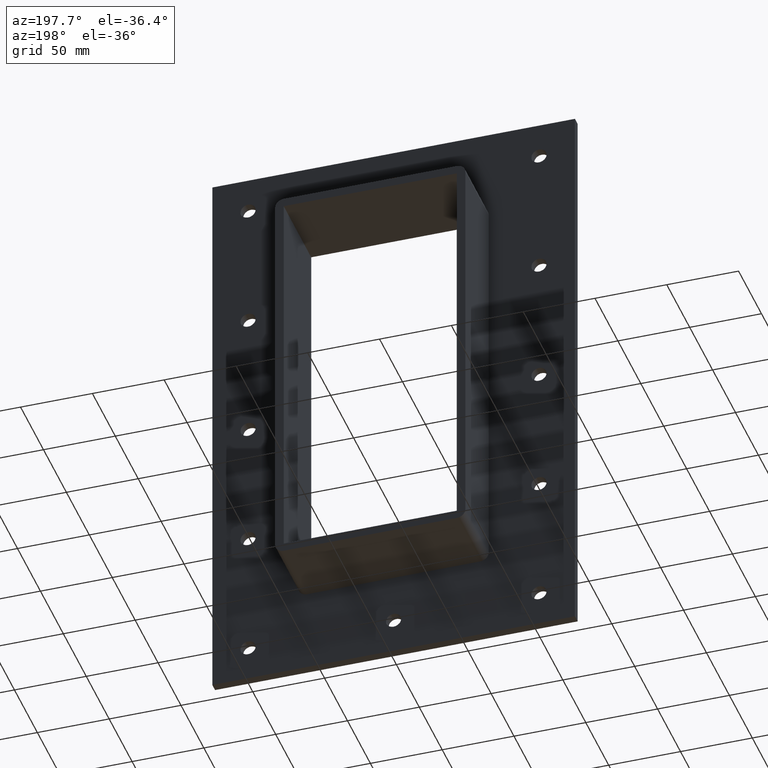
[diagram: clean part render]
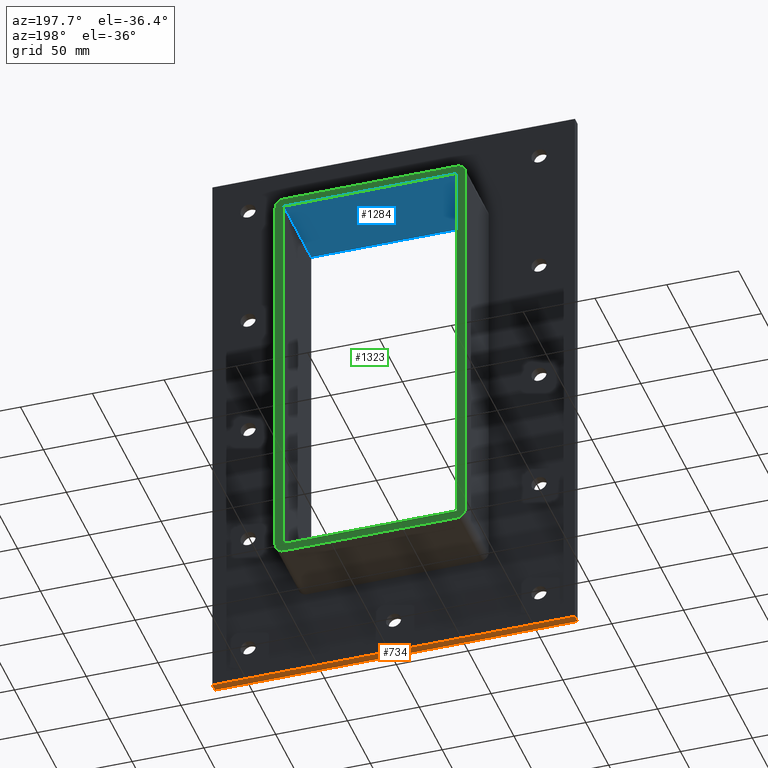
[diagram: same view with three faces highlighted in distinct colors, each labeled with its STEP entity id]
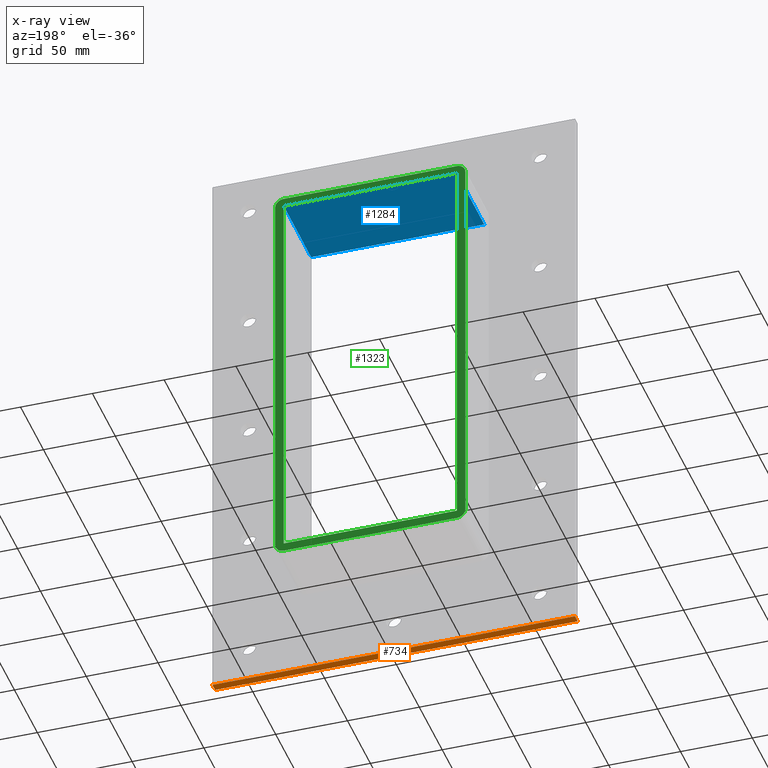
[diagram: x-ray of the same camera — body ghosted, the three highlighted faces saturated]
A machine part, auxiliary view with three faces highlighted in distinct colors.
The next image is the same camera in x-ray (body ghosted, the three faces saturated) — at least one of them is partly hidden behind the body in this view.
Their STEP definitions:

[orange] entity #734 — the highlighted planar face has unit normal (0, 0, -1).
#419=CARTESIAN_POINT('',(126.24999999999997,6.000000000000001,-205.0));
#420=VERTEX_POINT('',#419);
#427=CARTESIAN_POINT('',(-126.24999999999997,6.000000000000001,-205.0));
#428=VERTEX_POINT('',#427);
#429=CARTESIAN_POINT('',(126.24999999999999,6.000000000000001,-205.0));
#430=DIRECTION('',(-1.0,0.0,0.0));
#431=VECTOR('',#430,252.49999999999994);
#432=LINE('',#429,#431);
#433=EDGE_CURVE('',#420,#428,#432,.T.);
#565=CARTESIAN_POINT('',(-126.24999999999997,0.0,-205.0));
#566=VERTEX_POINT('',#565);
#573=CARTESIAN_POINT('',(126.24999999999999,0.0,-205.0));
#574=VERTEX_POINT('',#573);
#575=CARTESIAN_POINT('',(126.24999999999999,0.0,-205.0));
#576=DIRECTION('',(-1.0,0.0,0.0));
#577=VECTOR('',#576,252.49999999999994);
#578=LINE('',#575,#577);
#579=EDGE_CURVE('',#574,#566,#578,.T.);
#709=CARTESIAN_POINT('',(-126.24999999999997,0.0,-205.0));
#710=DIRECTION('',(0.0,1.0,0.0));
#711=VECTOR('',#710,6.000000000000001);
#712=LINE('',#709,#711);
#713=EDGE_CURVE('',#566,#428,#712,.T.);
#718=CARTESIAN_POINT('',(126.24999999999999,0.0,-205.0));
#719=DIRECTION('',(0.0,0.0,-1.0));
#720=DIRECTION('',(-1.0,0.0,0.0));
#721=AXIS2_PLACEMENT_3D('',#718,#719,#720);
#722=PLANE('',#721);
#723=ORIENTED_EDGE('',*,*,#579,.T.);
#724=ORIENTED_EDGE('',*,*,#713,.T.);
#725=ORIENTED_EDGE('',*,*,#433,.F.);
#726=CARTESIAN_POINT('',(126.24999999999999,0.0,-205.0));
#727=DIRECTION('',(0.0,1.0,0.0));
#728=VECTOR('',#727,6.000000000000001);
#729=LINE('',#726,#728);
#730=EDGE_CURVE('',#574,#420,#729,.T.);
#731=ORIENTED_EDGE('',*,*,#730,.F.);
#732=EDGE_LOOP('',(#723,#724,#725,#731));
#733=FACE_OUTER_BOUND('',#732,.T.);
#734=ADVANCED_FACE('',(#733),#722,.T.);

[blue] entity #1284 — the highlighted planar face has unit normal (0, 0, 1).
#779=CARTESIAN_POINT('',(-60.249999999999986,57.0,139.0));
#780=VERTEX_POINT('',#779);
#787=CARTESIAN_POINT('',(-60.249999999999986,-3.0,139.0));
#788=VERTEX_POINT('',#787);
#789=CARTESIAN_POINT('',(-60.249999999999986,-3.0,139.0));
#790=DIRECTION('',(0.0,1.0,0.0));
#791=VECTOR('',#790,60.0);
#792=LINE('',#789,#791);
#793=EDGE_CURVE('',#788,#780,#792,.T.);
#1120=CARTESIAN_POINT('',(60.249999999999986,-3.0,139.0));
#1121=VERTEX_POINT('',#1120);
#1137=CARTESIAN_POINT('',(-60.249999999999986,-3.0,139.0));
#1138=DIRECTION('',(1.0,0.0,0.0));
#1139=VECTOR('',#1138,120.49999999999997);
#1140=LINE('',#1137,#1139);
#1141=EDGE_CURVE('',#788,#1121,#1140,.T.);
#1251=CARTESIAN_POINT('',(60.249999999999986,57.0,139.0));
#1252=VERTEX_POINT('',#1251);
#1253=CARTESIAN_POINT('',(60.249999999999986,-3.0,139.0));
#1254=DIRECTION('',(0.0,1.0,0.0));
#1255=VECTOR('',#1254,60.0);
#1256=LINE('',#1253,#1255);
#1257=EDGE_CURVE('',#1121,#1252,#1256,.T.);
#1268=CARTESIAN_POINT('',(-60.249999999999986,0.0,139.0));
#1269=DIRECTION('',(0.0,0.0,1.0));
#1270=DIRECTION('',(1.0,0.0,0.0));
#1271=AXIS2_PLACEMENT_3D('',#1268,#1269,#1270);
#1272=PLANE('',#1271);
#1273=ORIENTED_EDGE('',*,*,#793,.T.);
#1274=CARTESIAN_POINT('',(60.249999999999979,57.0,139.0));
#1275=DIRECTION('',(-1.0,0.0,0.0));
#1276=VECTOR('',#1275,120.49999999999997);
#1277=LINE('',#1274,#1276);
#1278=EDGE_CURVE('',#1252,#780,#1277,.T.);
#1279=ORIENTED_EDGE('',*,*,#1278,.F.);
#1280=ORIENTED_EDGE('',*,*,#1257,.F.);
#1281=ORIENTED_EDGE('',*,*,#1141,.F.);
#1282=EDGE_LOOP('',(#1273,#1279,#1280,#1281));
#1283=FACE_OUTER_BOUND('',#1282,.T.);
#1284=ADVANCED_FACE('',(#1283),#1272,.F.);

[green] entity #1323 — the highlighted planar face has unit normal (0, 1, 0).
#771=CARTESIAN_POINT('',(-60.249999999999986,57.0,-139.0));
#772=VERTEX_POINT('',#771);
#779=CARTESIAN_POINT('',(-60.249999999999986,57.0,139.0));
#780=VERTEX_POINT('',#779);
#781=CARTESIAN_POINT('',(-60.249999999999986,57.0,139.0));
#782=DIRECTION('',(0.0,0.0,-1.0));
#783=VECTOR('',#782,278.0);
#784=LINE('',#781,#783);
#785=EDGE_CURVE('',#780,#772,#784,.T.);
#842=CARTESIAN_POINT('',(66.25,57.0,139.0));
#843=VERTEX_POINT('',#842);
#850=CARTESIAN_POINT('',(60.25,57.0,145.0));
#851=VERTEX_POINT('',#850);
#852=CARTESIAN_POINT('',(60.25,57.0,139.0));
#853=DIRECTION('',(0.0,-1.0,0.0));
#854=DIRECTION('',(0.707106781186548,0.0,0.707106781186547));
#855=AXIS2_PLACEMENT_3D('',#852,#853,#854);
#856=CIRCLE('',#855,6.0);
#857=EDGE_CURVE('',#843,#851,#856,.T.);
#898=CARTESIAN_POINT('',(66.25,57.0,-139.0));
#899=VERTEX_POINT('',#898);
#906=CARTESIAN_POINT('',(66.25,57.0,139.0));
#907=DIRECTION('',(0.0,0.0,-1.0));
#908=VECTOR('',#907,278.0);
#909=LINE('',#906,#908);
#910=EDGE_CURVE('',#843,#899,#909,.T.);
#971=CARTESIAN_POINT('',(60.25,57.0,-145.0));
#972=VERTEX_POINT('',#971);
#979=CARTESIAN_POINT('',(60.25,57.0,-139.0));
#980=DIRECTION('',(0.0,-1.0,0.0));
#981=DIRECTION('',(0.707106781186546,0.0,-0.707106781186549));
#982=AXIS2_PLACEMENT_3D('',#979,#980,#981);
#983=CIRCLE('',#982,6.000000000000001);
#984=EDGE_CURVE('',#972,#899,#983,.T.);
#1045=CARTESIAN_POINT('',(-60.25,57.0,-145.0));
#1046=VERTEX_POINT('',#1045);
#1053=CARTESIAN_POINT('',(60.25,57.0,-145.0));
#1054=DIRECTION('',(-1.0,0.0,0.0));
#1055=VECTOR('',#1054,120.5);
#1056=LINE('',#1053,#1055);
#1057=EDGE_CURVE('',#972,#1046,#1056,.T.);
#1152=CARTESIAN_POINT('',(-66.25,57.0,-139.0));
#1153=VERTEX_POINT('',#1152);
#1160=CARTESIAN_POINT('',(-60.25,57.0,-139.0));
#1161=DIRECTION('',(0.0,-1.0,0.0));
#1162=DIRECTION('',(-0.707106781186546,0.0,-0.707106781186549));
#1163=AXIS2_PLACEMENT_3D('',#1160,#1161,#1162);
#1164=CIRCLE('',#1163,6.000000000000001);
#1165=EDGE_CURVE('',#1153,#1046,#1164,.T.);
#1177=CARTESIAN_POINT('',(-66.25,57.0,139.0));
#1178=VERTEX_POINT('',#1177);
#1185=CARTESIAN_POINT('',(-66.25,57.0,-139.0));
#1186=DIRECTION('',(0.0,0.0,1.0));
#1187=VECTOR('',#1186,278.0);
#1188=LINE('',#1185,#1187);
#1189=EDGE_CURVE('',#1153,#1178,#1188,.T.);
#1201=CARTESIAN_POINT('',(-60.25,57.0,145.0));
#1202=VERTEX_POINT('',#1201);
#1209=CARTESIAN_POINT('',(-60.25,57.0,139.0));
#1210=DIRECTION('',(0.0,-1.0,0.0));
#1211=DIRECTION('',(-0.707106781186546,0.0,0.707106781186549));
#1212=AXIS2_PLACEMENT_3D('',#1209,#1210,#1211);
#1213=CIRCLE('',#1212,6.000000000000001);
#1214=EDGE_CURVE('',#1202,#1178,#1213,.T.);
#1227=CARTESIAN_POINT('',(-60.25,57.0,145.0));
#1228=DIRECTION('',(1.0,0.0,0.0));
#1229=VECTOR('',#1228,120.5);
#1230=LINE('',#1227,#1229);
#1231=EDGE_CURVE('',#1202,#851,#1230,.T.);
#1242=CARTESIAN_POINT('',(60.249999999999986,57.0,-139.0));
#1243=VERTEX_POINT('',#1242);
#1251=CARTESIAN_POINT('',(60.249999999999986,57.0,139.0));
#1252=VERTEX_POINT('',#1251);
#1259=CARTESIAN_POINT('',(60.249999999999986,57.0,-139.0));
#1260=DIRECTION('',(0.0,0.0,1.0));
#1261=VECTOR('',#1260,278.0);
#1262=LINE('',#1259,#1261);
#1263=EDGE_CURVE('',#1243,#1252,#1262,.T.);
#1274=CARTESIAN_POINT('',(60.249999999999979,57.0,139.0));
#1275=DIRECTION('',(-1.0,0.0,0.0));
#1276=VECTOR('',#1275,120.49999999999997);
#1277=LINE('',#1274,#1276);
#1278=EDGE_CURVE('',#1252,#780,#1277,.T.);
#1293=CARTESIAN_POINT('',(-60.249999999999979,57.0,-139.0));
#1294=DIRECTION('',(1.0,0.0,0.0));
#1295=VECTOR('',#1294,120.49999999999997);
#1296=LINE('',#1293,#1295);
#1297=EDGE_CURVE('',#772,#1243,#1296,.T.);
#1302=CARTESIAN_POINT('',(0.0,57.0,0.0));
#1303=DIRECTION('',(0.0,1.0,0.0));
#1304=DIRECTION('',(0.0,0.0,1.0));
#1305=AXIS2_PLACEMENT_3D('',#1302,#1303,#1304);
#1306=PLANE('',#1305);
#1307=ORIENTED_EDGE('',*,*,#984,.F.);
#1308=ORIENTED_EDGE('',*,*,#1057,.T.);
#1309=ORIENTED_EDGE('',*,*,#1165,.F.);
#1310=ORIENTED_EDGE('',*,*,#1189,.T.);
#1311=ORIENTED_EDGE('',*,*,#1214,.F.);
#1312=ORIENTED_EDGE('',*,*,#1231,.T.);
#1313=ORIENTED_EDGE('',*,*,#857,.F.);
#1314=ORIENTED_EDGE('',*,*,#910,.T.);
#1315=EDGE_LOOP('',(#1307,#1308,#1309,#1310,#1311,#1312,#1313,#1314));
#1316=FACE_OUTER_BOUND('',#1315,.T.);
#1317=ORIENTED_EDGE('',*,*,#1263,.T.);
#1318=ORIENTED_EDGE('',*,*,#1278,.T.);
#1319=ORIENTED_EDGE('',*,*,#785,.T.);
#1320=ORIENTED_EDGE('',*,*,#1297,.T.);
#1321=EDGE_LOOP('',(#1317,#1318,#1319,#1320));
#1322=FACE_BOUND('',#1321,.T.);
#1323=ADVANCED_FACE('',(#1316,#1322),#1306,.T.);